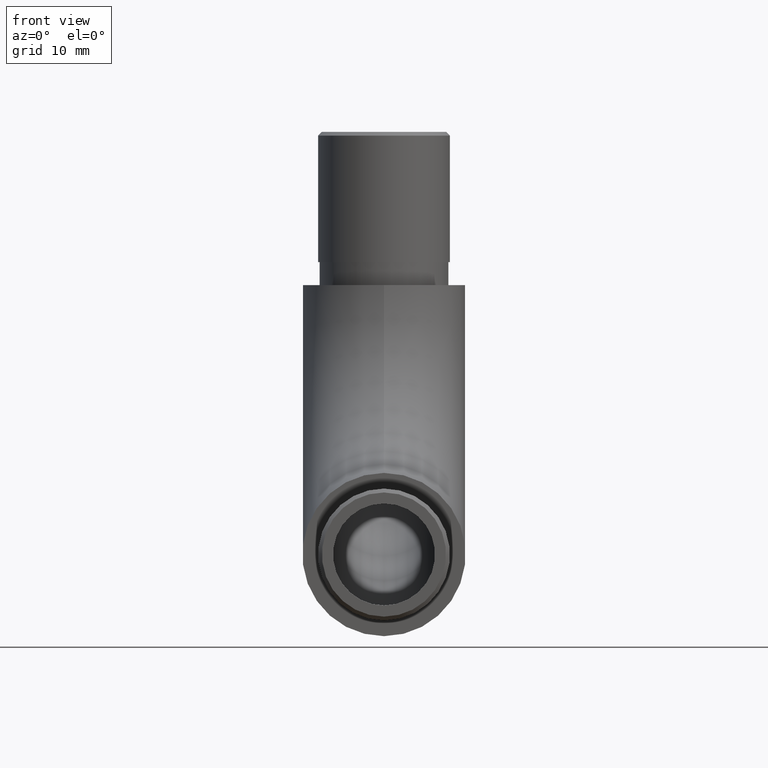
[diagram: clean part render]
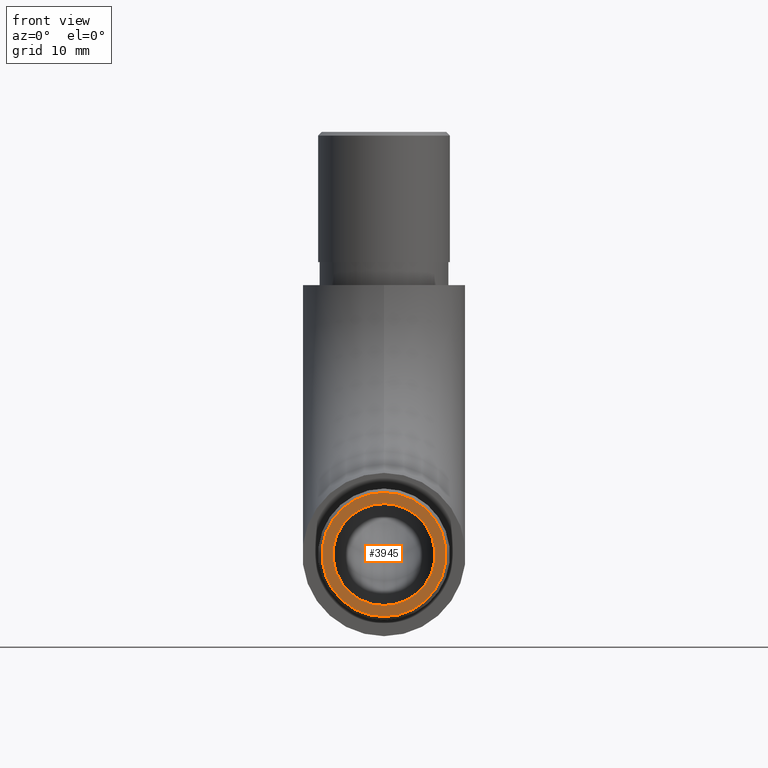
[diagram: same view with one face highlighted and labeled with its STEP entity id]
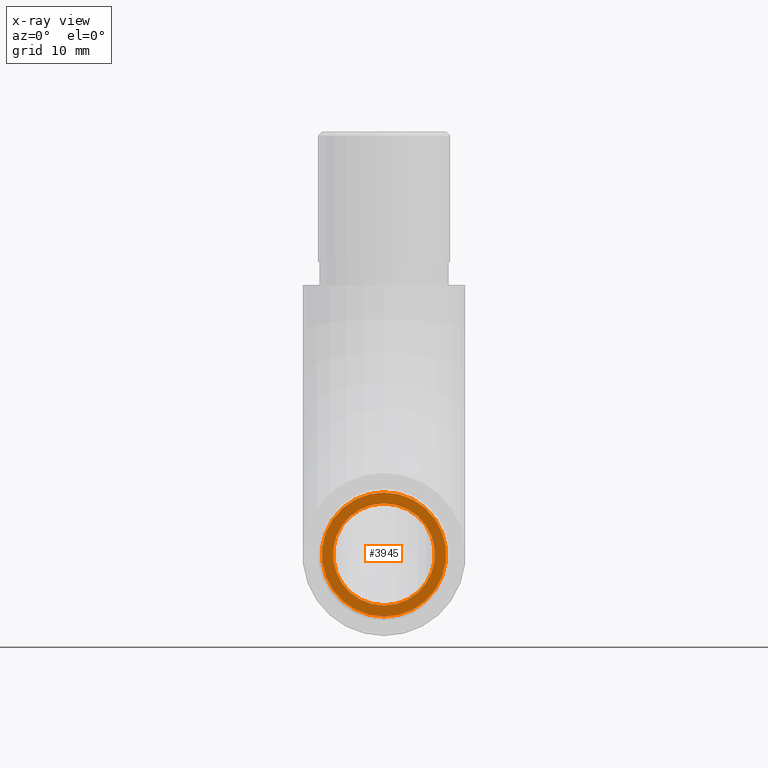
[diagram: x-ray of the same camera — body ghosted, the highlighted face saturated]
A machine part, front view. The second image highlights one B-rep face of the part: STEP entity #3945.
The next image is the same camera in x-ray: the body ghosted, the highlighted face saturated — about 0% of this face is hidden behind the body in this view.
In plain terms, the highlighted planar face has unit normal (0, -1, 0).
Its self-contained STEP definition (entity closure, byte-faithful):
#1233 = FACE_OUTER_BOUND ( 'NONE', #7701, .T. ) ;
#1318 = CARTESIAN_POINT ( 'NONE',  ( 0.0000000000000000000, -20.00000000000000000, 3.999999999999999100 ) ) ;
#1322 = CIRCLE ( 'NONE', #9540, 8.100000000000010300 ) ;
#2025 = DIRECTION ( 'NONE',  ( 0.0000000000000000000, -0.0000000000000000000, -1.000000000000000000 ) ) ;
#2077 = VERTEX_POINT ( 'NONE', #1318 ) ;
#3080 = DIRECTION ( 'NONE',  ( 0.0000000000000000000, -1.000000000000000000, 0.0000000000000000000 ) ) ;
#3446 = FACE_BOUND ( 'NONE', #4092, .T. ) ;
#3945 = ADVANCED_FACE ( 'NONE', ( #1233, #3446 ), #13880, .T. ) ;
#4092 = EDGE_LOOP ( 'NONE', ( #13477 ) ) ;
#4807 = ORIENTED_EDGE ( 'NONE', *, *, #8582, .T. ) ;
#5519 = CARTESIAN_POINT ( 'NONE',  ( 0.0000000000000000000, -20.00000000000000000, 2.549999999999989600 ) ) ;
#7008 = DIRECTION ( 'NONE',  ( 0.0000000000000000000, -1.000000000000000000, 0.0000000000000000000 ) ) ;
#7363 = CARTESIAN_POINT ( 'NONE',  ( 0.0000000000000000000, -20.00000000000000000, 10.65000000000000000 ) ) ;
#7701 = EDGE_LOOP ( 'NONE', ( #4807 ) ) ;
#7918 = EDGE_CURVE ( 'NONE', #2077, #2077, #12645, .T. ) ;
#8146 = AXIS2_PLACEMENT_3D ( 'NONE', #7363, #3080, #2025 ) ;
#8582 = EDGE_CURVE ( 'NONE', #13238, #13238, #1322, .T. ) ;
#9196 = CARTESIAN_POINT ( 'NONE',  ( 0.0000000000000000000, -20.00000000000000000, 10.65000000000000000 ) ) ;
#9540 = AXIS2_PLACEMENT_3D ( 'NONE', #13633, #11539, #13770 ) ;
#11539 = DIRECTION ( 'NONE',  ( 0.0000000000000000000, -1.000000000000000000, 0.0000000000000000000 ) ) ;
#12338 = DIRECTION ( 'NONE',  ( 0.0000000000000000000, 0.0000000000000000000, -1.000000000000000000 ) ) ;
#12428 = AXIS2_PLACEMENT_3D ( 'NONE', #9196, #7008, #12338 ) ;
#12645 = CIRCLE ( 'NONE', #12428, 6.650000000000000400 ) ;
#13238 = VERTEX_POINT ( 'NONE', #5519 ) ;
#13477 = ORIENTED_EDGE ( 'NONE', *, *, #7918, .F. ) ;
#13633 = CARTESIAN_POINT ( 'NONE',  ( 0.0000000000000000000, -20.00000000000000000, 10.65000000000000000 ) ) ;
#13770 = DIRECTION ( 'NONE',  ( 0.0000000000000000000, 0.0000000000000000000, -1.000000000000000000 ) ) ;
#13880 = PLANE ( 'NONE',  #8146 ) ;